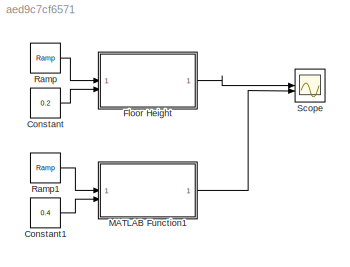
MODEL slx_aed9c7cf6571
KIND model
CONFIG AbsTol = auto
CONFIG EnableMultiTasking = off
CONFIG FixedStep = auto
CONFIG MaxStep = 0.00001
CONFIG MinStep = auto
CONFIG RelTol = 1e-3
CONFIG SampleTimeConstraint = Unconstrained
CONFIG SolverName = VariableStepAuto
CONFIG StartTime = 0.0
CONFIG StopTime = 2
BLOCK [Constant] Constant
  Value = 0.2
BLOCK [Constant] Constant1
  Value = 0.4
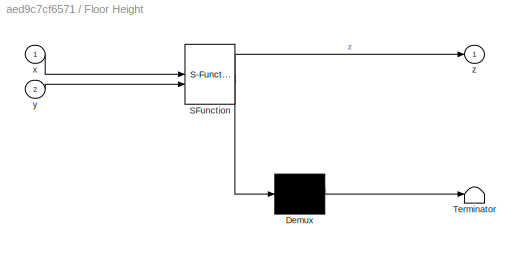
BLOCK [SubSystem] Floor Height
  ErrorFcn = Stateflow.Translate.translate
  PermitHierarchicalResolution = ExplicitOnly
  SFBlockType = MATLAB Function
  TreatAsAtomicUnit = on
BLOCK [Demux] Floor Height/ Demux 
  Outputs = 1
BLOCK [S-Function] Floor Height/ SFunction 
  EnableBusSupport = off
  FunctionName = sf_sfun
  PortCounts = [2 2]
  SFcnIsStateOwnerBlock = off
  SFunctionDeploymentMode = off
  Tag = Stateflow S-Function 2
BLOCK [Terminator] Floor Height/ Terminator 
BLOCK [Inport] Floor Height/x
BLOCK [Inport] Floor Height/y
  Port = 2
BLOCK [Outport] Floor Height/z
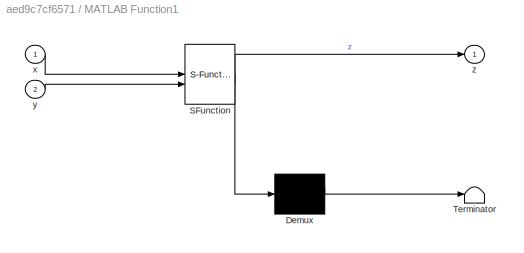
BLOCK [SubSystem] MATLAB Function1
  ErrorFcn = Stateflow.Translate.translate
  PermitHierarchicalResolution = ExplicitOnly
  SFBlockType = MATLAB Function
  TreatAsAtomicUnit = on
BLOCK [Demux] MATLAB Function1/ Demux 
  Outputs = 1
BLOCK [S-Function] MATLAB Function1/ SFunction 
  EnableBusSupport = off
  FunctionName = sf_sfun
  PortCounts = [2 2]
  SFcnIsStateOwnerBlock = off
  SFunctionDeploymentMode = off
  Tag = Stateflow S-Function 1
BLOCK [Terminator] MATLAB Function1/ Terminator 
BLOCK [Inport] MATLAB Function1/x
BLOCK [Inport] MATLAB Function1/y
  Port = 2
BLOCK [Outport] MATLAB Function1/z
BLOCK [Reference] Ramp  REF=simulink/Sources/Ramp
  SourceBlock = simulink/Sources/Ramp
  SourceType = Ramp
BLOCK [Reference] Ramp1  REF=simulink/Sources/Ramp
  SourceBlock = simulink/Sources/Ramp
  SourceType = Ramp
BLOCK [Scope] Scope
  ActiveDisplayYMaximum = 0.22570452980726027
  ActiveDisplayYMinimum = -0.16917959610754982
  Floating = off
  GraphicalSettings = {"Style":{"BackgroundColor":[0.12941176470588237,0.12941176470588237,0.12941176470588237],"AxesColor":[0.07058823529411765,0.07058823529411765,0.07058823529411765],"LabelsColor":[0.8509803921568627,0.8509803921568627,0.8509803921568627],"PreserveColors":false,"Visible":[true,true],"LineStyle":["-","-"],"LineWidth":[1.5,1.5],"BarWidth":[0.9,0.9],"LineColor":["auto","auto"],"LineFaceAlpha":[1,1],"Li...<+2739ch>
  MultipleDisplayCache = [{"MaxYLimMag":0.034375,"MaxYLimReal":0.22570452980726027,"MinYLimMag":0,"MinYLimReal":-0.16917959610754982,"PlotAsMagnitudePhase":false,"ShowGrid":true,"ShowLegend":false,"Title":"%<SignalLabel>","YLabel":""}]
  NumInputPorts = 2
  ScopeFrameLocation = window
  Visible = on
  WasSavedAsWebScope = on
  WindowPosition = [1.000000,1.000000,1512.000000,945.000000,]
LINE Constant1:1 -> MATLAB Function1:2
LINE Constant:1 -> Floor Height:2
LINE Floor Height:1 -> Scope:1
LINE MATLAB Function1:1 -> Scope:2
LINE Ramp1:1 -> MATLAB Function1:1
LINE Ramp:1 -> Floor Height:1
CHART Floor Height states=1 transitions=1
  STATE_LABEL 'eML_blk_kernel()'
  STATE_LABEL 'SCRIPT:\nfunction z = floorHeightFcn(x, y)\n%#codegen\n% FLOORHEIGHTFCN  Return floor height [m] at position (x,y).\n% Suitable for MATLAB Function blocks (no dynamic sizing / cat / zeros).\n\n%% ---- CONSTANTS --------------------------------------------------------\ntile_pitch          = 0.3048;  % 1 ft in m\ngrout_width         = 0.010;   % 1 cm in m \ngrout_depth         = 0.005;   % 5 mm in m\ntile_sur...<+1663ch>'
CHART MATLAB Function1 states=1 transitions=1
  STATE_LABEL 'eML_blk_kernel()'
  STATE_LABEL 'SCRIPT:\nfunction z = floorHeightFcn(x, y)\n%#codegen\n% FLOORHEIGHTFCN  Return floor height [m] at position (x,y).\n% Suitable for MATLAB Function blocks (no dynamic sizing / cat / zeros).\n\n%% ---- CONSTANTS --------------------------------------------------------\ntile_pitch          = 0.3048;  % 1 ft in m\ngrout_width         = 0.010;   % 1 cm in m \ngrout_depth         = 0.005;   % 5 mm in m\ntile_sur...<+1663ch>'
CHART  states=0 transitions=0
CHART  states=0 transitions=0
